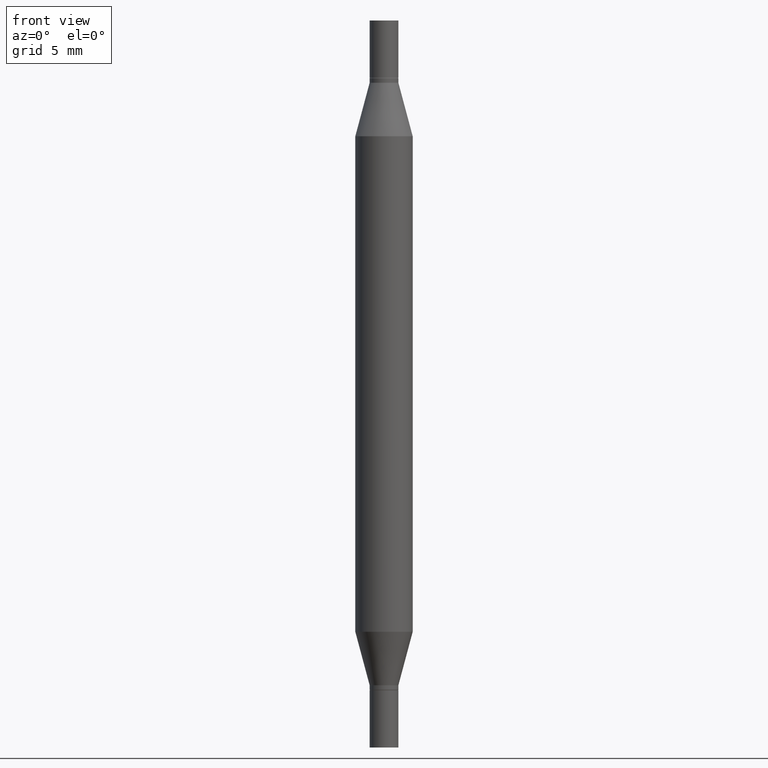
[diagram: clean part render]
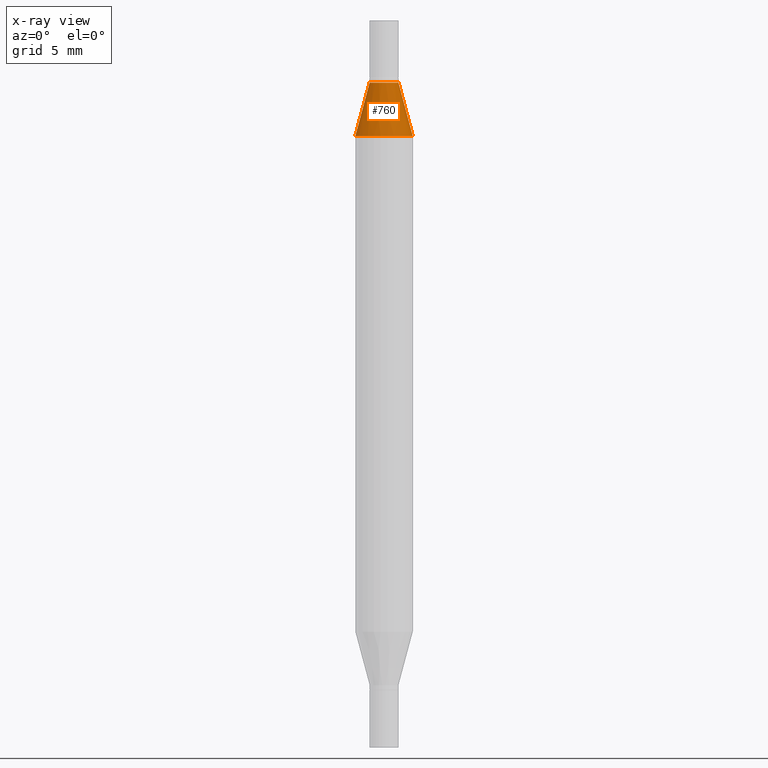
[diagram: x-ray — body ghosted, one internal face saturated and labeled with its STEP entity id]
A machine part, front view, then the same camera in x-ray: the body is ghosted and one INTERNAL B-rep face — a face not visible from any outside direction — is saturated and labeled: STEP entity #760.
In plain terms, the highlighted conical surface has half-angle 15 deg.
Its self-contained STEP definition (entity closure, byte-faithful):
#25 = CARTESIAN_POINT ( 'NONE',  ( 3.345645873741884627E-29, -4.467088663909703532E-16, -0.1280000000000001137 ) ) ;
#29 = DIRECTION ( 'NONE',  ( 2.445468806185136597E-29, 3.491805094961124077E-15, 1.000000000000000000 ) ) ;
#38 = CARTESIAN_POINT ( 'NONE',  ( -0.02954999999999991661, -2.439811505568221169E-16, -0.1280000000000001137 ) ) ;
#50 = CIRCLE ( 'NONE', #450, 0.05904999999999999832 ) ;
#107 = ORIENTED_EDGE ( 'NONE', *, *, #407, .T. ) ;
#113 = DIRECTION ( 'NONE',  ( -0.2588190451025213501, -1.597197180879714326E-15, -0.9659258262890682012 ) ) ;
#123 = VERTEX_POINT ( 'NONE', #598 ) ;
#164 = DIRECTION ( 'NONE',  ( -2.445468806185136597E-29, -3.491805094961124077E-15, -1.000000000000000000 ) ) ;
#170 = ORIENTED_EDGE ( 'NONE', *, *, #298, .F. ) ;
#220 = CARTESIAN_POINT ( 'NONE',  ( 3.345645873741884627E-29, -4.467088663909703532E-16, -0.1280000000000001137 ) ) ;
#248 = LINE ( 'NONE', #542, #639 ) ;
#257 = CARTESIAN_POINT ( 'NONE',  ( 3.076410765668156654E-29, -8.311408901143919011E-16, -0.2380954988232820146 ) ) ;
#278 = CIRCLE ( 'NONE', #604, 0.02954999999999991661 ) ;
#298 = EDGE_CURVE ( 'NONE', #123, #426, #278, .T. ) ;
#341 = CARTESIAN_POINT ( 'NONE',  ( -0.05904999999999999832, -4.260284833459836245E-16, -0.2380954988232820146 ) ) ;
#349 = EDGE_CURVE ( 'NONE', #123, #674, #932, .T. ) ;
#407 = EDGE_CURVE ( 'NONE', #674, #934, #50, .T. ) ;
#426 = VERTEX_POINT ( 'NONE', #957 ) ;
#428 = DIRECTION ( 'NONE',  ( 0.2588190451025213501, -5.180148453816008779E-15, -0.9659258262890682012 ) ) ;
#434 = VECTOR ( 'NONE', #113, 39.37007874015747433 ) ;
#450 = AXIS2_PLACEMENT_3D ( 'NONE', #257, #29, #555 ) ;
#492 = ORIENTED_EDGE ( 'NONE', *, *, #349, .T. ) ;
#517 = ORIENTED_EDGE ( 'NONE', *, *, #938, .F. ) ;
#542 = CARTESIAN_POINT ( 'NONE',  ( 0.02954999999999991661, -6.530554135165988789E-16, -0.1280000000000001137 ) ) ;
#555 = DIRECTION ( 'NONE',  ( 1.000000000000000000, -6.982962677686265133E-15, 0.000000000000000000 ) ) ;
#598 = CARTESIAN_POINT ( 'NONE',  ( -0.02954999999999991661, -2.275696666105042854E-16, -0.1280000000000001137 ) ) ;
#604 = AXIS2_PLACEMENT_3D ( 'NONE', #25, #780, #858 ) ;
#605 = AXIS2_PLACEMENT_3D ( 'NONE', #220, #164, #668 ) ;
#614 = CARTESIAN_POINT ( 'NONE',  ( 0.05904999999999999832, -1.243484836231766624E-15, -0.2380954988232820146 ) ) ;
#639 = VECTOR ( 'NONE', #428, 39.37007874015747433 ) ;
#668 = DIRECTION ( 'NONE',  ( 1.000000000000000000, -6.982962677686265133E-15, 0.000000000000000000 ) ) ;
#674 = VERTEX_POINT ( 'NONE', #341 ) ;
#760 = ADVANCED_FACE ( 'NONE', ( #974 ), #980, .T. ) ;
#780 = DIRECTION ( 'NONE',  ( 2.445468806185136597E-29, 3.491805094961124077E-15, 1.000000000000000000 ) ) ;
#841 = EDGE_LOOP ( 'NONE', ( #170, #492, #107, #517 ) ) ;
#858 = DIRECTION ( 'NONE',  ( 1.000000000000000000, -6.982962677686265133E-15, 0.000000000000000000 ) ) ;
#932 = LINE ( 'NONE', #38, #434 ) ;
#934 = VERTEX_POINT ( 'NONE', #614 ) ;
#938 = EDGE_CURVE ( 'NONE', #426, #934, #248, .T. ) ;
#957 = CARTESIAN_POINT ( 'NONE',  ( 0.02954999999999991661, -6.530554135165988789E-16, -0.1280000000000001137 ) ) ;
#974 = FACE_OUTER_BOUND ( 'NONE', #841, .T. ) ;
#980 = CONICAL_SURFACE ( 'NONE', #605, 0.02954999999999991661, 0.2617993877991500740 ) ;